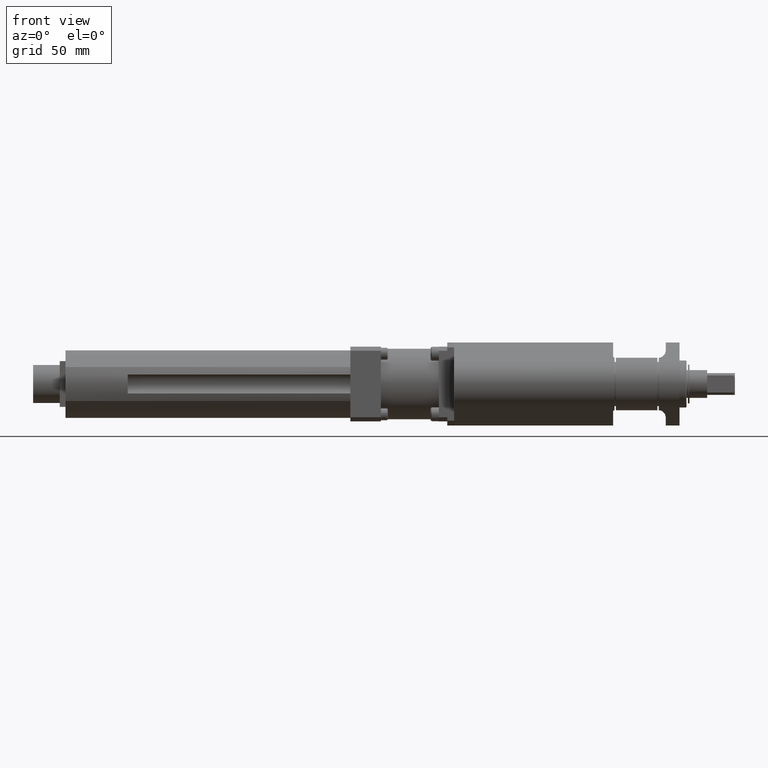
[diagram: clean part render]
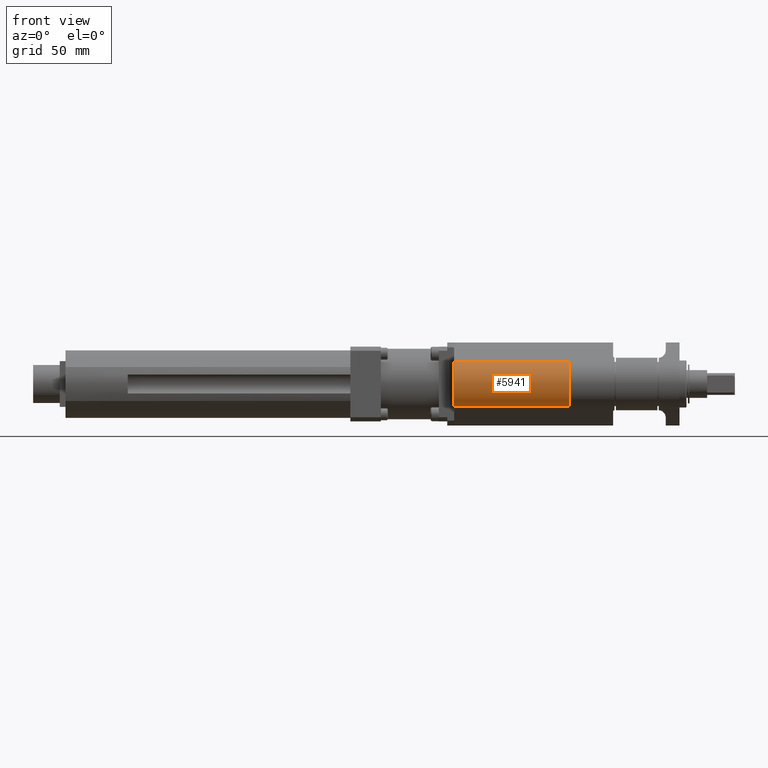
[diagram: same view with one face highlighted and labeled with its STEP entity id]
A machine part, front view. The second image highlights one B-rep face of the part: STEP entity #5941.
In plain terms, the highlighted cylindrical surface (edge-blend (fillet) strip) has radius 19 mm, axis along (1, -0, -0).
Its self-contained STEP definition (entity closure, byte-faithful):
#315 = DIRECTION ( 'NONE',  ( 0.0000000000000000000, 0.0000000000000000000, 1.000000000000000000 ) ) ;
#339 = VECTOR ( 'NONE', #9187, 1000.000000000000000 ) ;
#1203 = EDGE_LOOP ( 'NONE', ( #3318, #11073, #6899, #9489 ) ) ;
#1706 = DIRECTION ( 'NONE',  ( -1.000000000000000000, 0.0000000000000000000, 0.0000000000000000000 ) ) ;
#2200 = VERTEX_POINT ( 'NONE', #5795 ) ;
#2650 = EDGE_CURVE ( 'NONE', #11317, #2200, #7789, .T. ) ;
#2863 = CARTESIAN_POINT ( 'NONE',  ( -163.0000000000000000, 0.0000000000000000000, 0.0000000000000000000 ) ) ;
#2924 = VERTEX_POINT ( 'NONE', #7492 ) ;
#3080 = CARTESIAN_POINT ( 'NONE',  ( -163.0000000000000000, 0.0000000000000000000, 0.0000000000000000000 ) ) ;
#3318 = ORIENTED_EDGE ( 'NONE', *, *, #2650, .T. ) ;
#3532 = CYLINDRICAL_SURFACE ( 'NONE', #6291, 19.00000000000000400 ) ;
#3682 = DIRECTION ( 'NONE',  ( 1.000000000000000000, -0.0000000000000000000, -0.0000000000000000000 ) ) ;
#4746 = VERTEX_POINT ( 'NONE', #9435 ) ;
#4832 = DIRECTION ( 'NONE',  ( 0.0000000000000000000, 0.0000000000000000000, 1.000000000000000000 ) ) ;
#5049 = CARTESIAN_POINT ( 'NONE',  ( -163.0000000000000000, -9.500000000000135000, 16.45448267190426300 ) ) ;
#5795 = CARTESIAN_POINT ( 'NONE',  ( -80.00000000000000000, -9.500000000000135000, 16.45448267190426300 ) ) ;
#5941 = ADVANCED_FACE ( 'NONE', ( #12463 ), #3532, .T. ) ;
#6206 = DIRECTION ( 'NONE',  ( -1.000000000000000000, 0.0000000000000000000, 0.0000000000000000000 ) ) ;
#6291 = AXIS2_PLACEMENT_3D ( 'NONE', #2863, #12163, #10783 ) ;
#6718 = CARTESIAN_POINT ( 'NONE',  ( -80.00000000000000000, -9.499999999999886300, -16.45448267190440500 ) ) ;
#6854 = EDGE_CURVE ( 'NONE', #2924, #11317, #11940, .T. ) ;
#6899 = ORIENTED_EDGE ( 'NONE', *, *, #9218, .F. ) ;
#7492 = CARTESIAN_POINT ( 'NONE',  ( -163.0000000000000000, -9.499999999999886300, -16.45448267190440500 ) ) ;
#7594 = CARTESIAN_POINT ( 'NONE',  ( -80.00000000000000000, 0.0000000000000000000, 0.0000000000000000000 ) ) ;
#7789 = CIRCLE ( 'NONE', #10761, 19.00000000000000400 ) ;
#9187 = DIRECTION ( 'NONE',  ( 1.000000000000000000, -0.0000000000000000000, -0.0000000000000000000 ) ) ;
#9199 = LINE ( 'NONE', #5049, #11060 ) ;
#9218 = EDGE_CURVE ( 'NONE', #2924, #4746, #9620, .T. ) ;
#9435 = CARTESIAN_POINT ( 'NONE',  ( -163.0000000000000000, -9.500000000000135000, 16.45448267190426300 ) ) ;
#9489 = ORIENTED_EDGE ( 'NONE', *, *, #6854, .T. ) ;
#9620 = CIRCLE ( 'NONE', #11915, 19.00000000000000400 ) ;
#10414 = EDGE_CURVE ( 'NONE', #4746, #2200, #9199, .T. ) ;
#10539 = CARTESIAN_POINT ( 'NONE',  ( -163.0000000000000000, -9.499999999999886300, -16.45448267190440500 ) ) ;
#10761 = AXIS2_PLACEMENT_3D ( 'NONE', #7594, #6206, #4832 ) ;
#10783 = DIRECTION ( 'NONE',  ( 0.0000000000000000000, 0.0000000000000000000, -1.000000000000000000 ) ) ;
#11060 = VECTOR ( 'NONE', #3682, 1000.000000000000000 ) ;
#11073 = ORIENTED_EDGE ( 'NONE', *, *, #10414, .F. ) ;
#11317 = VERTEX_POINT ( 'NONE', #6718 ) ;
#11915 = AXIS2_PLACEMENT_3D ( 'NONE', #3080, #1706, #315 ) ;
#11940 = LINE ( 'NONE', #10539, #339 ) ;
#12163 = DIRECTION ( 'NONE',  ( 1.000000000000000000, -0.0000000000000000000, -0.0000000000000000000 ) ) ;
#12463 = FACE_OUTER_BOUND ( 'NONE', #1203, .T. ) ;